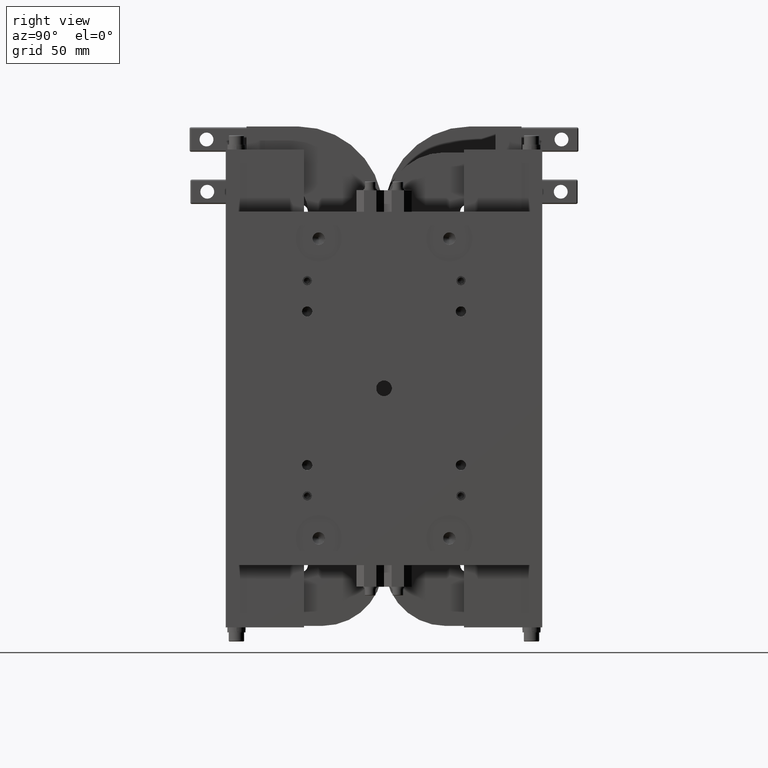
[diagram: clean part render]
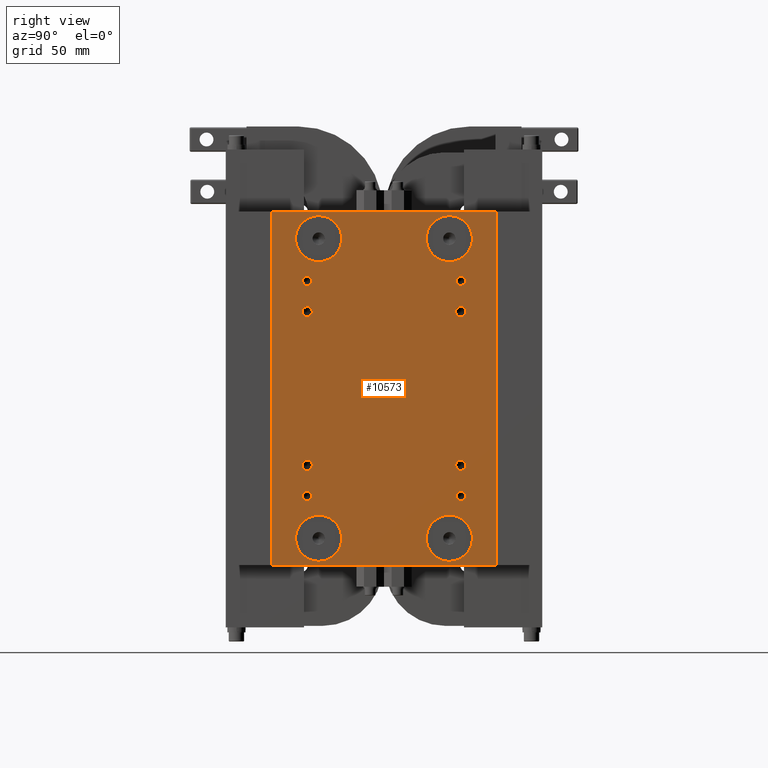
[diagram: same view with one face highlighted and labeled with its STEP entity id]
A machine part, right view. The second image highlights one B-rep face of the part: STEP entity #10573.
In plain terms, the highlighted planar face has unit normal (1, 0, 0).
Its self-contained STEP definition (entity closure, byte-faithful):
#1139=FACE_BOUND('',#2836,.T.);
#1140=FACE_BOUND('',#2837,.T.);
#1141=FACE_BOUND('',#2838,.T.);
#1142=FACE_BOUND('',#2839,.T.);
#1143=FACE_BOUND('',#2840,.T.);
#1144=FACE_BOUND('',#2841,.T.);
#1145=FACE_BOUND('',#2842,.T.);
#1146=FACE_BOUND('',#2843,.T.);
#1147=FACE_BOUND('',#2844,.T.);
#1148=FACE_BOUND('',#2845,.T.);
#1149=FACE_BOUND('',#2846,.T.);
#1150=FACE_BOUND('',#2847,.T.);
#1151=FACE_BOUND('',#2848,.T.);
#1399=CIRCLE('',#11291,15.);
#1403=CIRCLE('',#11299,15.);
#1407=CIRCLE('',#11307,15.);
#1411=CIRCLE('',#11315,15.);
#1413=CIRCLE('',#11319,5.053);
#1415=CIRCLE('',#11323,3.3235);
#1417=CIRCLE('',#11327,3.3235);
#1419=CIRCLE('',#11331,3.3235);
#1421=CIRCLE('',#11335,3.3235);
#1425=CIRCLE('',#11342,3.);
#1429=CIRCLE('',#11349,3.);
#1433=CIRCLE('',#11356,3.);
#1437=CIRCLE('',#11363,3.);
#2043=FACE_OUTER_BOUND('',#2835,.T.);
#2835=EDGE_LOOP('',(#7523,#7524,#7525,#7526));
#2836=EDGE_LOOP('',(#7527));
#2837=EDGE_LOOP('',(#7528));
#2838=EDGE_LOOP('',(#7529));
#2839=EDGE_LOOP('',(#7530));
#2840=EDGE_LOOP('',(#7531));
#2841=EDGE_LOOP('',(#7532));
#2842=EDGE_LOOP('',(#7533));
#2843=EDGE_LOOP('',(#7534));
#2844=EDGE_LOOP('',(#7535));
#2845=EDGE_LOOP('',(#7536));
#2846=EDGE_LOOP('',(#7537));
#2847=EDGE_LOOP('',(#7538));
#2848=EDGE_LOOP('',(#7539));
#3395=LINE('',#16288,#4161);
#3399=LINE('',#16295,#4165);
#3400=LINE('',#16298,#4166);
#3401=LINE('',#16299,#4167);
#4161=VECTOR('',#13082,146.);
#4165=VECTOR('',#13088,230.);
#4166=VECTOR('',#13091,146.);
#4167=VECTOR('',#13092,230.);
#5058=VERTEX_POINT('',#16109);
#5062=VERTEX_POINT('',#16121);
#5066=VERTEX_POINT('',#16133);
#5070=VERTEX_POINT('',#16145);
#5072=VERTEX_POINT('',#16151);
#5074=VERTEX_POINT('',#16157);
#5076=VERTEX_POINT('',#16163);
#5078=VERTEX_POINT('',#16169);
#5080=VERTEX_POINT('',#16175);
#5084=VERTEX_POINT('',#16186);
#5088=VERTEX_POINT('',#16197);
#5092=VERTEX_POINT('',#16208);
#5096=VERTEX_POINT('',#16219);
#5119=VERTEX_POINT('',#16285);
#5120=VERTEX_POINT('',#16287);
#5122=VERTEX_POINT('',#16293);
#5123=VERTEX_POINT('',#16297);
#5992=EDGE_CURVE('',#5058,#5058,#1399,.T.);
#5996=EDGE_CURVE('',#5062,#5062,#1403,.T.);
#6000=EDGE_CURVE('',#5066,#5066,#1407,.T.);
#6004=EDGE_CURVE('',#5070,#5070,#1411,.T.);
#6006=EDGE_CURVE('',#5072,#5072,#1413,.T.);
#6008=EDGE_CURVE('',#5074,#5074,#1415,.T.);
#6010=EDGE_CURVE('',#5076,#5076,#1417,.T.);
#6012=EDGE_CURVE('',#5078,#5078,#1419,.T.);
#6014=EDGE_CURVE('',#5080,#5080,#1421,.T.);
#6018=EDGE_CURVE('',#5084,#5084,#1425,.T.);
#6022=EDGE_CURVE('',#5088,#5088,#1429,.T.);
#6026=EDGE_CURVE('',#5092,#5092,#1433,.T.);
#6030=EDGE_CURVE('',#5096,#5096,#1437,.T.);
#6053=EDGE_CURVE('',#5119,#5120,#3395,.T.);
#6057=EDGE_CURVE('',#5119,#5122,#3399,.T.);
#6058=EDGE_CURVE('',#5123,#5122,#3400,.T.);
#6059=EDGE_CURVE('',#5120,#5123,#3401,.T.);
#7523=ORIENTED_EDGE('',*,*,#6057,.T.);
#7524=ORIENTED_EDGE('',*,*,#6058,.F.);
#7525=ORIENTED_EDGE('',*,*,#6059,.F.);
#7526=ORIENTED_EDGE('',*,*,#6053,.F.);
#7527=ORIENTED_EDGE('',*,*,#5992,.T.);
#7528=ORIENTED_EDGE('',*,*,#5996,.T.);
#7529=ORIENTED_EDGE('',*,*,#6000,.T.);
#7530=ORIENTED_EDGE('',*,*,#6004,.T.);
#7531=ORIENTED_EDGE('',*,*,#6006,.T.);
#7532=ORIENTED_EDGE('',*,*,#6008,.T.);
#7533=ORIENTED_EDGE('',*,*,#6010,.T.);
#7534=ORIENTED_EDGE('',*,*,#6012,.T.);
#7535=ORIENTED_EDGE('',*,*,#6014,.T.);
#7536=ORIENTED_EDGE('',*,*,#6018,.T.);
#7537=ORIENTED_EDGE('',*,*,#6022,.T.);
#7538=ORIENTED_EDGE('',*,*,#6026,.T.);
#7539=ORIENTED_EDGE('',*,*,#6030,.T.);
#9618=PLANE('',#11406);
#10573=ADVANCED_FACE('',(#2043,#1139,#1140,#1141,#1142,#1143,#1144,#1145,
#1146,#1147,#1148,#1149,#1150,#1151),#9618,.T.);
#11291=AXIS2_PLACEMENT_3D('',#16110,#12852,#12853);
#11299=AXIS2_PLACEMENT_3D('',#16122,#12868,#12869);
#11307=AXIS2_PLACEMENT_3D('',#16134,#12884,#12885);
#11315=AXIS2_PLACEMENT_3D('',#16146,#12900,#12901);
#11319=AXIS2_PLACEMENT_3D('',#16152,#12908,#12909);
#11323=AXIS2_PLACEMENT_3D('',#16158,#12916,#12917);
#11327=AXIS2_PLACEMENT_3D('',#16164,#12924,#12925);
#11331=AXIS2_PLACEMENT_3D('',#16170,#12932,#12933);
#11335=AXIS2_PLACEMENT_3D('',#16176,#12940,#12941);
#11342=AXIS2_PLACEMENT_3D('',#16187,#12954,#12955);
#11349=AXIS2_PLACEMENT_3D('',#16198,#12968,#12969);
#11356=AXIS2_PLACEMENT_3D('',#16209,#12982,#12983);
#11363=AXIS2_PLACEMENT_3D('',#16220,#12996,#12997);
#11406=AXIS2_PLACEMENT_3D('',#16296,#13089,#13090);
#12852=DIRECTION('center_axis',(-1.,-3.6500483001375E-16,0.));
#12853=DIRECTION('ref_axis',(0.,0.,-1.));
#12868=DIRECTION('center_axis',(-1.,-3.6500483001375E-16,0.));
#12869=DIRECTION('ref_axis',(0.,0.,-1.));
#12884=DIRECTION('center_axis',(-1.,-3.6500483001375E-16,0.));
#12885=DIRECTION('ref_axis',(0.,0.,-1.));
#12900=DIRECTION('center_axis',(-1.,-3.6500483001375E-16,0.));
#12901=DIRECTION('ref_axis',(0.,0.,-1.));
#12908=DIRECTION('center_axis',(-1.,-3.6500483001375E-16,0.));
#12909=DIRECTION('ref_axis',(0.,0.,-1.));
#12916=DIRECTION('center_axis',(-1.,-3.6500483001375E-16,0.));
#12917=DIRECTION('ref_axis',(0.,0.,-1.));
#12924=DIRECTION('center_axis',(-1.,-3.6500483001375E-16,0.));
#12925=DIRECTION('ref_axis',(0.,0.,-1.));
#12932=DIRECTION('center_axis',(-1.,-3.6500483001375E-16,0.));
#12933=DIRECTION('ref_axis',(0.,0.,-1.));
#12940=DIRECTION('center_axis',(-1.,-3.6500483001375E-16,0.));
#12941=DIRECTION('ref_axis',(0.,0.,-1.));
#12954=DIRECTION('center_axis',(-1.,-3.6500483001375E-16,0.));
#12955=DIRECTION('ref_axis',(0.,0.,1.));
#12968=DIRECTION('center_axis',(-1.,-3.6500483001375E-16,0.));
#12969=DIRECTION('ref_axis',(0.,0.,1.));
#12982=DIRECTION('center_axis',(-1.,-3.6500483001375E-16,0.));
#12983=DIRECTION('ref_axis',(0.,0.,1.));
#12996=DIRECTION('center_axis',(-1.,-3.6500483001375E-16,0.));
#12997=DIRECTION('ref_axis',(0.,0.,1.));
#13082=DIRECTION('',(3.6500483001375E-16,-1.,0.));
#13088=DIRECTION('',(0.,0.,1.));
#13089=DIRECTION('center_axis',(1.,3.6500483001375E-16,0.));
#13090=DIRECTION('ref_axis',(0.,1.,0.));
#13091=DIRECTION('',(-3.6500483001375E-16,1.,0.));
#13092=DIRECTION('',(0.,0.,1.));
#16109=CARTESIAN_POINT('',(112.,-42.4999999999999,82.5));
#16110=CARTESIAN_POINT('Origin',(112.,-42.4999999999999,97.5));
#16121=CARTESIAN_POINT('',(112.,42.5,-112.5));
#16122=CARTESIAN_POINT('Origin',(112.,42.5,-97.5));
#16133=CARTESIAN_POINT('',(112.,-42.4999999999999,-112.5));
#16134=CARTESIAN_POINT('Origin',(112.,-42.4999999999999,-97.5));
#16145=CARTESIAN_POINT('',(112.,42.5,82.5));
#16146=CARTESIAN_POINT('Origin',(112.,42.5,97.5));
#16151=CARTESIAN_POINT('',(112.,4.44089209850063E-14,-5.053));
#16152=CARTESIAN_POINT('Origin',(112.,4.44089209850063E-14,0.));
#16157=CARTESIAN_POINT('',(112.,50.,46.6765));
#16158=CARTESIAN_POINT('Origin',(112.,50.,50.));
#16163=CARTESIAN_POINT('',(112.,-50.,-53.3235000000001));
#16164=CARTESIAN_POINT('Origin',(112.,-50.,-50.0000000000001));
#16169=CARTESIAN_POINT('',(112.,50.,-53.3235000000001));
#16170=CARTESIAN_POINT('Origin',(112.,50.,-50.0000000000001));
#16175=CARTESIAN_POINT('',(112.,-50.,46.6765));
#16176=CARTESIAN_POINT('Origin',(112.,-50.,50.));
#16186=CARTESIAN_POINT('',(112.,50.,-73.));
#16187=CARTESIAN_POINT('Origin',(112.,50.,-70.));
#16197=CARTESIAN_POINT('',(112.,-50.,67.));
#16198=CARTESIAN_POINT('Origin',(112.,-50.,70.));
#16208=CARTESIAN_POINT('',(112.,50.,67.));
#16209=CARTESIAN_POINT('Origin',(112.,50.,70.));
#16219=CARTESIAN_POINT('',(112.,-50.,-73.));
#16220=CARTESIAN_POINT('Origin',(112.,-50.,-70.));
#16285=CARTESIAN_POINT('',(112.,73.,-115.));
#16287=CARTESIAN_POINT('',(112.,-73.,-115.));
#16288=CARTESIAN_POINT('',(112.,-73.,-115.));
#16293=CARTESIAN_POINT('',(112.,73.,115.));
#16295=CARTESIAN_POINT('',(112.,73.,0.));
#16296=CARTESIAN_POINT('Origin',(112.,-73.,0.));
#16297=CARTESIAN_POINT('',(112.,-73.,115.));
#16298=CARTESIAN_POINT('',(112.,-73.,115.));
#16299=CARTESIAN_POINT('',(112.,-73.,0.));